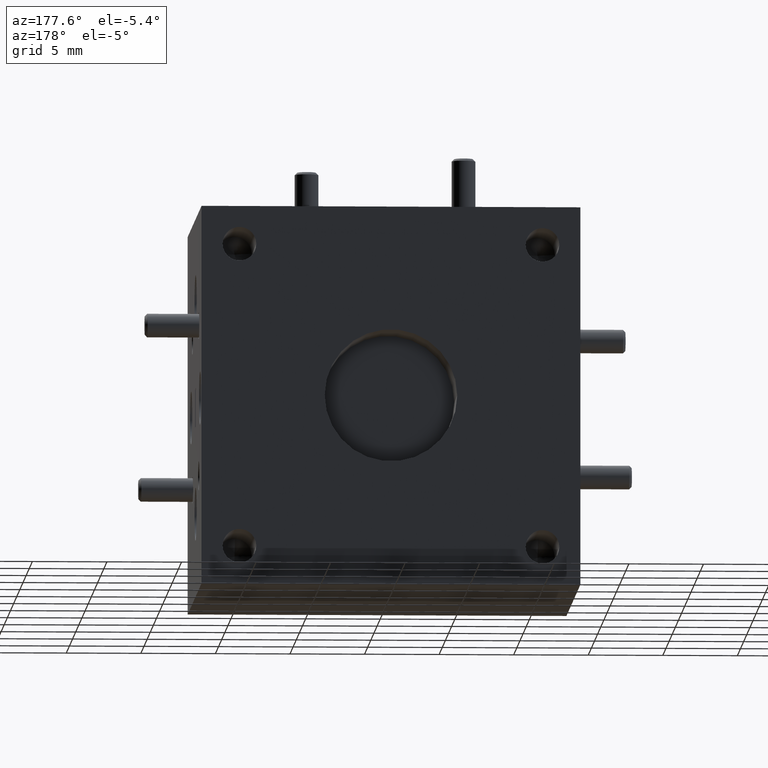
[diagram: clean part render]
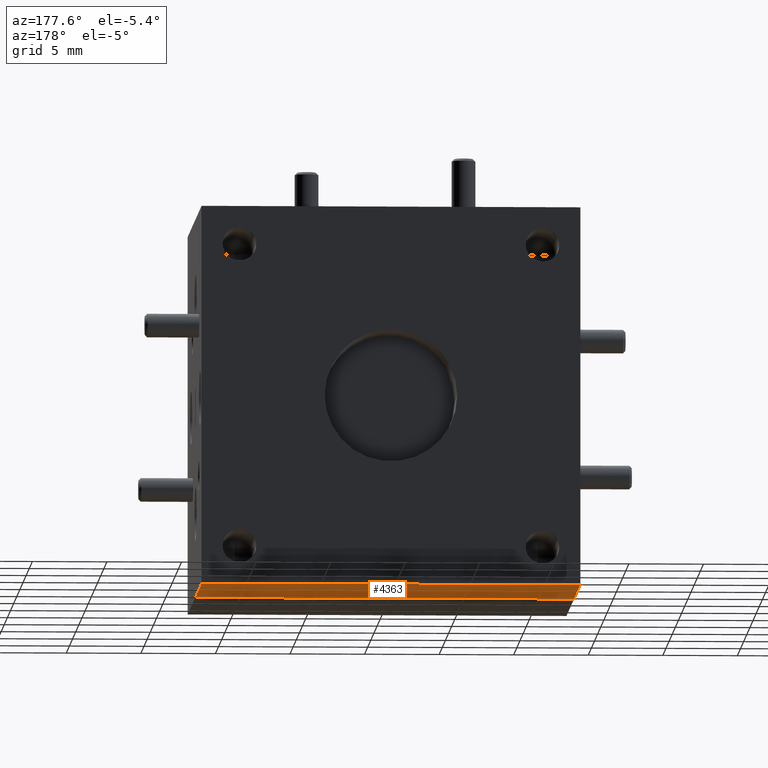
[diagram: same view with one face highlighted and labeled with its STEP entity id]
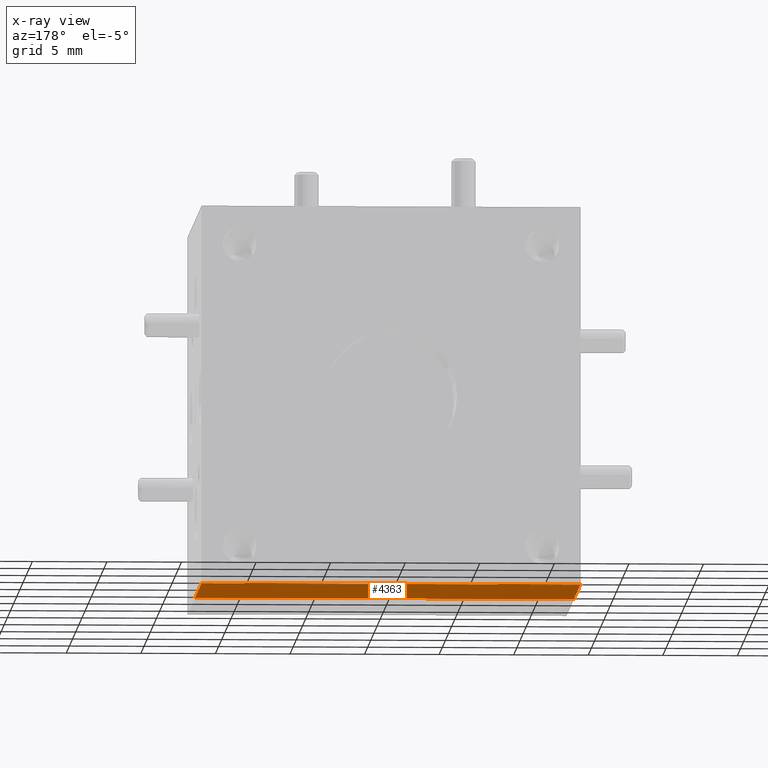
[diagram: x-ray of the same camera — body ghosted, the highlighted face saturated]
A machine part, auxiliary view. The second image highlights one B-rep face of the part: STEP entity #4363.
The next image is the same camera in x-ray: the body ghosted, the highlighted face saturated — about 0% of this face is hidden behind the body in this view.
In plain terms, the highlighted planar face has unit normal (-0, -0, 1).
Its self-contained STEP definition (entity closure, byte-faithful):
#9 = ORIENTED_EDGE ( 'NONE', *, *, #7753, .F. ) ;
#105 = VECTOR ( 'NONE', #5751, 39.37007874015748100 ) ;
#167 = DIRECTION ( 'NONE',  ( -4.005424018088923000E-034, -1.103398394531687200E-018, 1.000000000000000000 ) ) ;
#387 = VERTEX_POINT ( 'NONE', #9523 ) ;
#514 = EDGE_LOOP ( 'NONE', ( #1227, #3108, #9, #9673 ) ) ;
#699 = LINE ( 'NONE', #2032, #6374 ) ;
#1227 = ORIENTED_EDGE ( 'NONE', *, *, #6896, .T. ) ;
#1245 = VECTOR ( 'NONE', #2210, 39.37007874015748100 ) ;
#1279 = CARTESIAN_POINT ( 'NONE',  ( 0.4999999999999997800, 0.8750000000000001100, -0.5000000000000001100 ) ) ;
#1420 = VERTEX_POINT ( 'NONE', #6837 ) ;
#1485 = LINE ( 'NONE', #5192, #1245 ) ;
#2032 = CARTESIAN_POINT ( 'NONE',  ( 0.4999999999999997800, 0.4750000000000000300, -0.5000000000000001100 ) ) ;
#2210 = DIRECTION ( 'NONE',  ( 1.000000000000000000, -4.419578430977977600E-052, 4.005424018088923000E-034 ) ) ;
#2548 = FACE_OUTER_BOUND ( 'NONE', #514, .T. ) ;
#2611 = DIRECTION ( 'NONE',  ( 0.0000000000000000000, -1.000000000000000000, -1.103398394531687200E-018 ) ) ;
#2797 = DIRECTION ( 'NONE',  ( -7.679050901318798100E-018, -1.000000000000000000, 3.836456603060711000E-033 ) ) ;
#3108 = ORIENTED_EDGE ( 'NONE', *, *, #3849, .F. ) ;
#3849 = EDGE_CURVE ( 'NONE', #387, #1420, #1485, .T. ) ;
#4108 = LINE ( 'NONE', #7315, #105 ) ;
#4363 = ADVANCED_FACE ( 'NONE', ( #2548 ), #9582, .F. ) ;
#4824 = AXIS2_PLACEMENT_3D ( 'NONE', #4881, #167, #2611 ) ;
#4851 = EDGE_CURVE ( 'NONE', #7221, #7688, #4108, .T. ) ;
#4881 = CARTESIAN_POINT ( 'NONE',  ( -0.5000000000000002200, 0.4750000000000000300, -0.4999999999999997200 ) ) ;
#5192 = CARTESIAN_POINT ( 'NONE',  ( -0.5000000000000002200, 0.4750000000000000300, -0.4999999999999997200 ) ) ;
#5297 = LINE ( 'NONE', #9190, #6981 ) ;
#5751 = DIRECTION ( 'NONE',  ( 1.000000000000000000, -7.679050901318858200E-018, 0.0000000000000000000 ) ) ;
#6374 = VECTOR ( 'NONE', #2797, 39.37007874015748100 ) ;
#6837 = CARTESIAN_POINT ( 'NONE',  ( 0.4999999999999997800, 0.4750000000000000300, -0.4999999999999999400 ) ) ;
#6896 = EDGE_CURVE ( 'NONE', #7688, #1420, #699, .T. ) ;
#6981 = VECTOR ( 'NONE', #8394, 39.37007874015748100 ) ;
#7221 = VERTEX_POINT ( 'NONE', #9413 ) ;
#7315 = CARTESIAN_POINT ( 'NONE',  ( -3.414809992080329000E-017, 0.8750000000000001100, -0.4999999999999997200 ) ) ;
#7688 = VERTEX_POINT ( 'NONE', #1279 ) ;
#7753 = EDGE_CURVE ( 'NONE', #7221, #387, #5297, .T. ) ;
#8394 = DIRECTION ( 'NONE',  ( 0.0000000000000000000, -1.000000000000000000, -1.103398394531687200E-018 ) ) ;
#9190 = CARTESIAN_POINT ( 'NONE',  ( -0.5000000000000002200, 0.4750000000000000300, -0.4999999999999997200 ) ) ;
#9413 = CARTESIAN_POINT ( 'NONE',  ( -0.5000000000000002200, 0.8750000000000001100, -0.4999999999999997200 ) ) ;
#9523 = CARTESIAN_POINT ( 'NONE',  ( -0.5000000000000003300, 0.4750000000000000300, -0.4999999999999997800 ) ) ;
#9582 = PLANE ( 'NONE',  #4824 ) ;
#9673 = ORIENTED_EDGE ( 'NONE', *, *, #4851, .T. ) ;